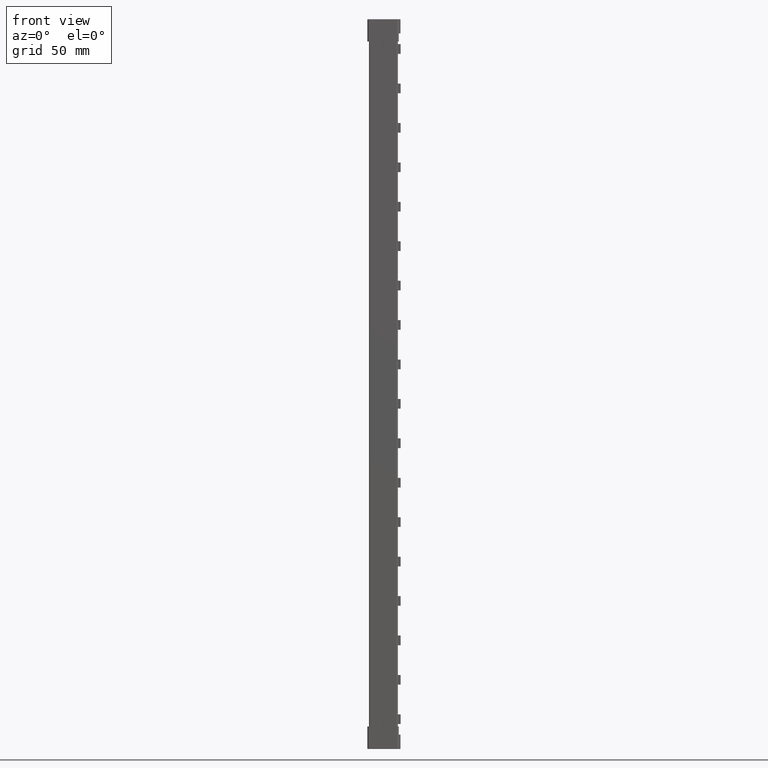
[diagram: clean part render]
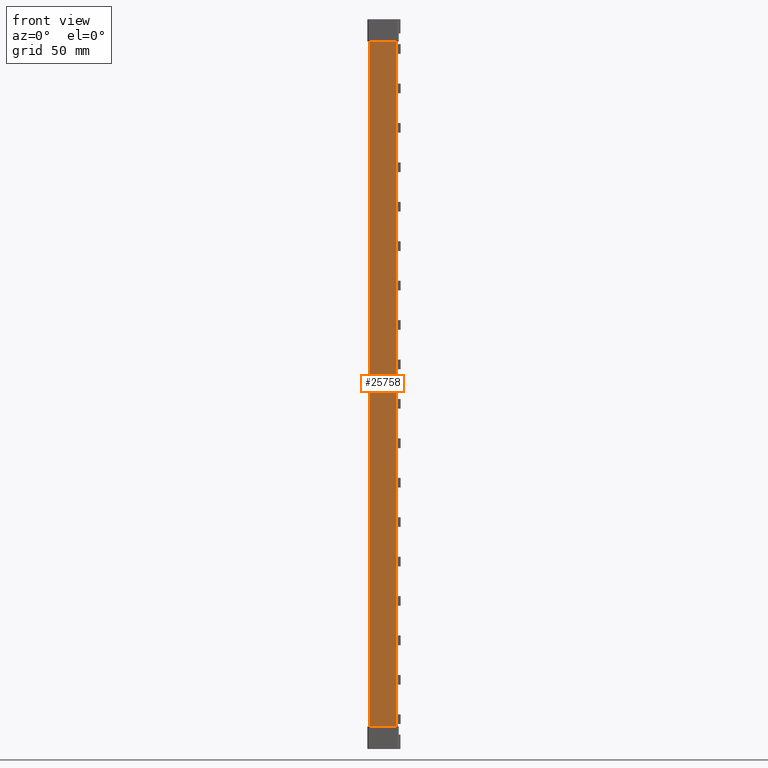
[diagram: same view with one face highlighted and labeled with its STEP entity id]
A machine part, front view. The second image highlights one B-rep face of the part: STEP entity #25758.
In plain terms, the highlighted planar face has unit normal (-0, 1, 0).
Its self-contained STEP definition (entity closure, byte-faithful):
#3790 = CARTESIAN_POINT ( 'NONE',  ( 11.80192812978782200, 1.341396436406132800E-007, -95.90000000000000600 ) ) ;
#3815 = CARTESIAN_POINT ( 'NONE',  ( 6.569117483822791100E-017, 5.678304975968649300E-014, -95.90000000000002000 ) ) ;
#3831 = CARTESIAN_POINT ( 'NONE',  ( 11.80192812978782300, 1.341396425247165100E-007, 209.9000000000000100 ) ) ;
#4614 = CARTESIAN_POINT ( 'NONE',  ( 1.001343685361909400E-016, 5.592961252169490400E-014, 209.9000000000000100 ) ) ;
#6723 = LINE ( 'NONE', #6747, #26527 ) ;
#6732 = DIRECTION ( 'NONE',  ( -0.9999999999999998900, -1.136590436583420100E-008, 0.0000000000000000000 ) ) ;
#6743 = LINE ( 'NONE', #6767, #26521 ) ;
#6747 = CARTESIAN_POINT ( 'NONE',  ( 0.0000000000000000000, 5.551115123125782700E-014, -95.90000000000006300 ) ) ;
#6764 = DIRECTION ( 'NONE',  ( -0.0000000000000000000, -0.0000000000000000000, -1.000000000000000000 ) ) ;
#6767 = CARTESIAN_POINT ( 'NONE',  ( 11.80192812978782200, 1.341396419667681300E-007, 219.0000000000000000 ) ) ;
#6984 = CARTESIAN_POINT ( 'NONE',  ( 0.0000000000000000000, 5.551115123125782700E-014, 219.0000000000000000 ) ) ;
#6988 = PLANE ( 'NONE',  #26589 ) ;
#6996 = FACE_OUTER_BOUND ( 'NONE', #14067, .T. ) ;
#7030 = DIRECTION ( 'NONE',  ( -1.136590436583420300E-008, 1.000000000000000000, 0.0000000000000000000 ) ) ;
#7032 = DIRECTION ( 'NONE',  ( -0.9999999999999998900, -1.136590436583420100E-008, 0.0000000000000000000 ) ) ;
#7822 = DIRECTION ( 'NONE',  ( 0.0000000000000000000, 0.0000000000000000000, 1.000000000000000000 ) ) ;
#7849 = LINE ( 'NONE', #7850, #26502 ) ;
#7850 = CARTESIAN_POINT ( 'NONE',  ( 1.977558013664550800E-023, 5.551115123125782700E-014, 219.0000000000000000 ) ) ;
#14067 = EDGE_LOOP ( 'NONE', ( #23935, #23987, #23932, #23952 ) ) ;
#22085 = DIRECTION ( 'NONE',  ( 0.9999999999999998900, 1.136590436583420100E-008, -0.0000000000000000000 ) ) ;
#22088 = CARTESIAN_POINT ( 'NONE',  ( 0.0000000000000000000, 5.551115123125782700E-014, 209.9000000000000100 ) ) ;
#22120 = LINE ( 'NONE', #22088, #26511 ) ;
#23932 = ORIENTED_EDGE ( 'NONE', *, *, #25696, .F. ) ;
#23935 = ORIENTED_EDGE ( 'NONE', *, *, #25691, .F. ) ;
#23952 = ORIENTED_EDGE ( 'NONE', *, *, #25680, .F. ) ;
#23987 = ORIENTED_EDGE ( 'NONE', *, *, #25698, .F. ) ;
#25680 = EDGE_CURVE ( 'NONE', #28738, #27471, #22120, .T. ) ;
#25691 = EDGE_CURVE ( 'NONE', #27492, #28738, #7849, .T. ) ;
#25696 = EDGE_CURVE ( 'NONE', #27471, #27443, #6743, .T. ) ;
#25698 = EDGE_CURVE ( 'NONE', #27443, #27492, #6723, .T. ) ;
#25758 = ADVANCED_FACE ( 'NONE', ( #6996 ), #6988, .F. ) ;
#26502 = VECTOR ( 'NONE', #7822, 1000.000000000000000 ) ;
#26511 = VECTOR ( 'NONE', #22085, 1000.000000000000100 ) ;
#26521 = VECTOR ( 'NONE', #6764, 1000.000000000000000 ) ;
#26527 = VECTOR ( 'NONE', #6732, 1000.000000000000100 ) ;
#26589 = AXIS2_PLACEMENT_3D ( 'NONE', #6984, #7030, #7032 ) ;
#27443 = VERTEX_POINT ( 'NONE', #3790 ) ;
#27471 = VERTEX_POINT ( 'NONE', #3831 ) ;
#27492 = VERTEX_POINT ( 'NONE', #3815 ) ;
#28738 = VERTEX_POINT ( 'NONE', #4614 ) ;